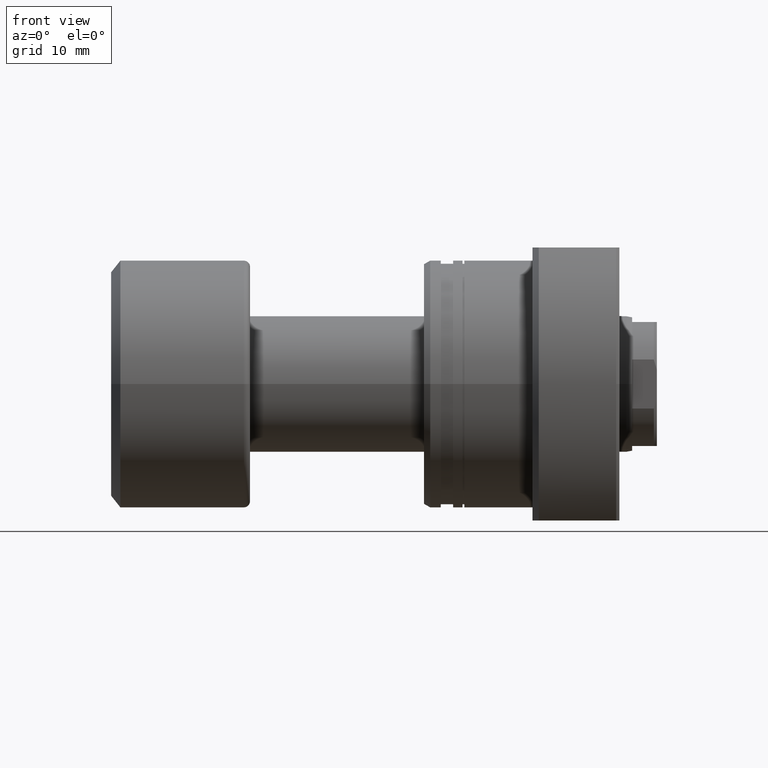
[diagram: clean part render]
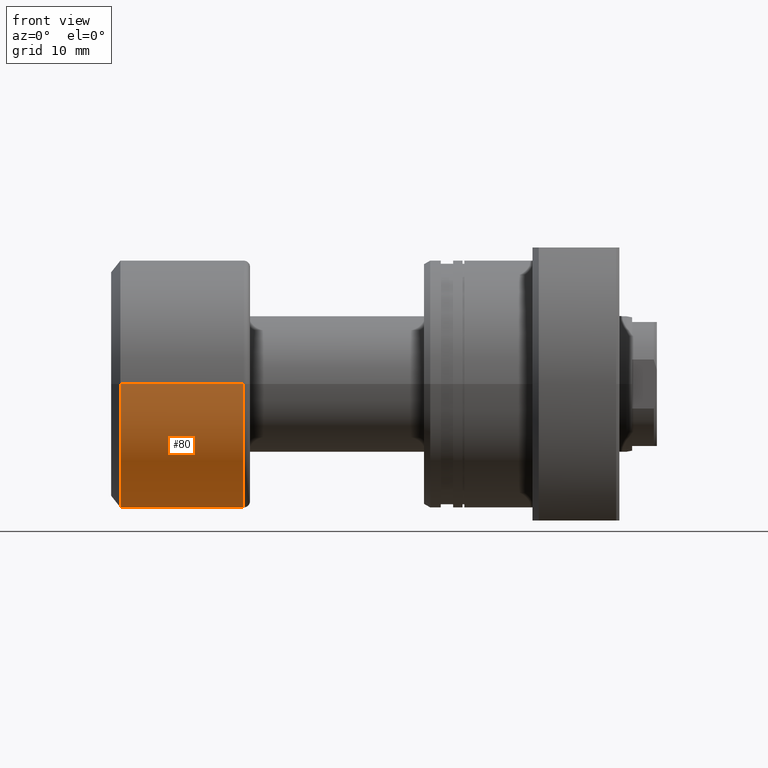
[diagram: same view with one face highlighted and labeled with its STEP entity id]
A machine part, front view. The second image highlights one B-rep face of the part: STEP entity #80.
In plain terms, the highlighted cylindrical surface (partial cylindrical patch) has radius 20 mm, axis along (-1, -0, -0).
Its self-contained STEP definition (entity closure, byte-faithful):
#80 = ADVANCED_FACE ( 'NONE', ( #439 ), #911, .T. ) ;
#91 = VECTOR ( 'NONE', #569, 1000.000000000000000 ) ;
#106 = VERTEX_POINT ( 'NONE', #2384 ) ;
#119 = DIRECTION ( 'NONE',  ( 1.084202172485504434E-17, -1.000000000000000000, 0.000000000000000000 ) ) ;
#286 = CARTESIAN_POINT ( 'NONE',  ( 2.139084644138131786E-16, -20.00000000000000000, 0.000000000000000000 ) ) ;
#293 = ORIENTED_EDGE ( 'NONE', *, *, #1177, .F. ) ;
#429 = CIRCLE ( 'NONE', #1666, 20.00000000000000000 ) ;
#439 = FACE_OUTER_BOUND ( 'NONE', #1487, .T. ) ;
#476 = VERTEX_POINT ( 'NONE', #1208 ) ;
#569 = DIRECTION ( 'NONE',  ( -1.000000000000000000, -1.069542322069065801E-17, -0.000000000000000000 ) ) ;
#612 = DIRECTION ( 'NONE',  ( 1.069542322069065955E-17, -1.000000000000000000, 0.000000000000000000 ) ) ;
#794 = VERTEX_POINT ( 'NONE', #3173 ) ;
#835 = CARTESIAN_POINT ( 'NONE',  ( 1.500000000000002442, 1.604313483103601552E-17, 0.000000000000000000 ) ) ;
#895 = DIRECTION ( 'NONE',  ( -1.000000000000000000, -1.069542322069065801E-17, -0.000000000000000000 ) ) ;
#911 = CYLINDRICAL_SURFACE ( 'NONE', #2744, 20.00000000000000000 ) ;
#1177 = EDGE_CURVE ( 'NONE', #106, #476, #2600, .T. ) ;
#1208 = CARTESIAN_POINT ( 'NONE',  ( 1.500000000000002442, 20.00000000000000000, 0.000000000000000000 ) ) ;
#1487 = EDGE_LOOP ( 'NONE', ( #293, #3041, #2847, #1931 ) ) ;
#1519 = CARTESIAN_POINT ( 'NONE',  ( 21.40000000000000213, -20.00000000000000000, 0.000000000000000000 ) ) ;
#1637 = EDGE_CURVE ( 'NONE', #106, #2788, #3167, .T. ) ;
#1666 = AXIS2_PLACEMENT_3D ( 'NONE', #835, #2798, #119 ) ;
#1823 = DIRECTION ( 'NONE',  ( -1.000000000000000000, -1.069542322069065801E-17, -0.000000000000000000 ) ) ;
#1827 = DIRECTION ( 'NONE',  ( -1.000000000000000000, -1.069542322069065801E-17, -0.000000000000000000 ) ) ;
#1931 = ORIENTED_EDGE ( 'NONE', *, *, #2473, .F. ) ;
#2036 = VECTOR ( 'NONE', #1823, 1000.000000000000000 ) ;
#2066 = EDGE_CURVE ( 'NONE', #2788, #794, #2790, .T. ) ;
#2185 = AXIS2_PLACEMENT_3D ( 'NONE', #2318, #1827, #2824 ) ;
#2318 = CARTESIAN_POINT ( 'NONE',  ( 21.40000000000000213, 2.288820569227801297E-16, 0.000000000000000000 ) ) ;
#2384 = CARTESIAN_POINT ( 'NONE',  ( 21.40000000000000213, 20.00000000000000000, 2.449293598294706513E-15 ) ) ;
#2422 = CARTESIAN_POINT ( 'NONE',  ( 0.000000000000000000, 0.000000000000000000, 0.000000000000000000 ) ) ;
#2473 = EDGE_CURVE ( 'NONE', #476, #794, #429, .T. ) ;
#2600 = LINE ( 'NONE', #3071, #91 ) ;
#2744 = AXIS2_PLACEMENT_3D ( 'NONE', #2422, #895, #612 ) ;
#2788 = VERTEX_POINT ( 'NONE', #1519 ) ;
#2790 = LINE ( 'NONE', #286, #2036 ) ;
#2798 = DIRECTION ( 'NONE',  ( -1.000000000000000000, -1.069542322069065801E-17, -0.000000000000000000 ) ) ;
#2824 = DIRECTION ( 'NONE',  ( 0.000000000000000000, -1.000000000000000000, 0.000000000000000000 ) ) ;
#2847 = ORIENTED_EDGE ( 'NONE', *, *, #2066, .T. ) ;
#3041 = ORIENTED_EDGE ( 'NONE', *, *, #1637, .T. ) ;
#3071 = CARTESIAN_POINT ( 'NONE',  ( -2.139084644138131786E-16, 20.00000000000000000, 2.449293598294706513E-15 ) ) ;
#3167 = CIRCLE ( 'NONE', #2185, 20.00000000000000000 ) ;
#3173 = CARTESIAN_POINT ( 'NONE',  ( 1.500000000000002887, -20.00000000000000000, 2.449293598294706513E-15 ) ) ;